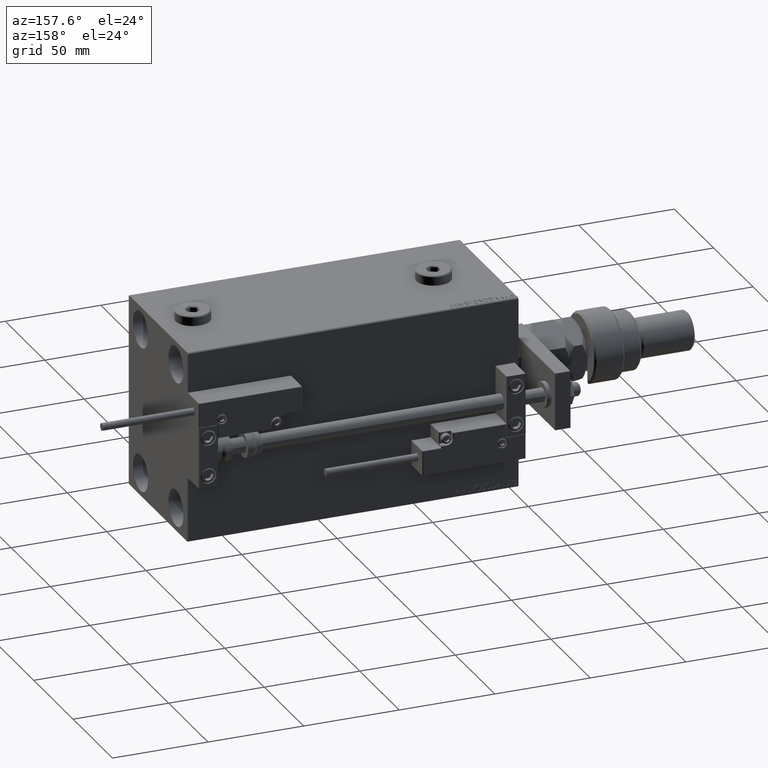
[diagram: clean part render]
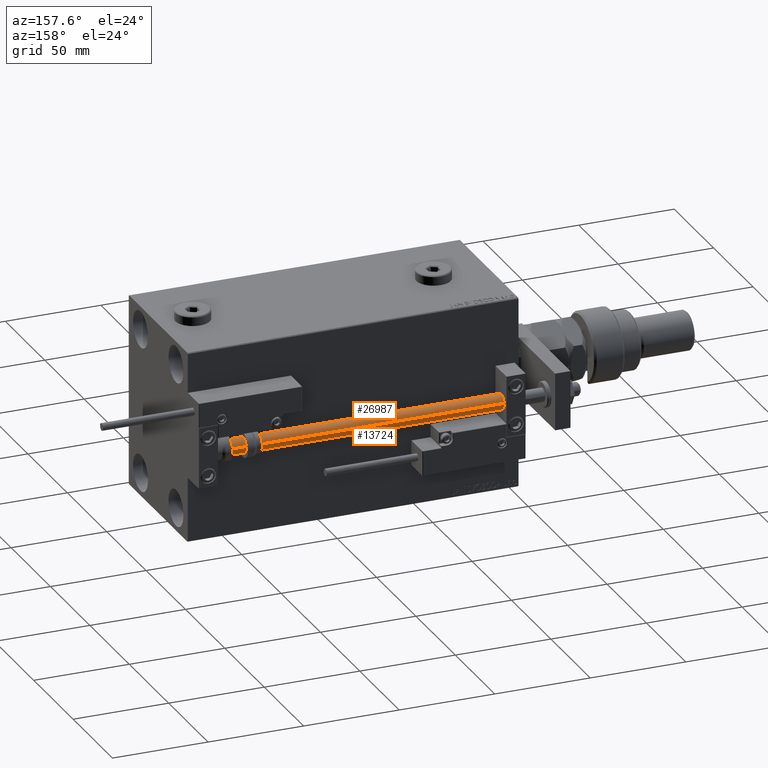
[diagram: same view with one multi-face feature highlighted, each face labeled with its STEP entity id]
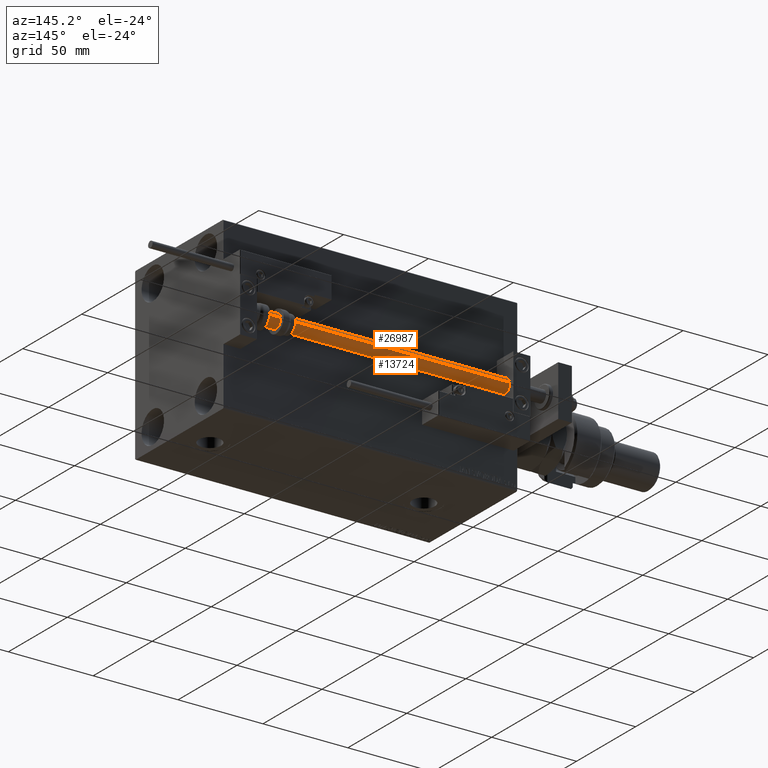
[diagram: same view with one multi-face feature highlighted, each face labeled with its STEP entity id]
A machine part, auxiliary view. The highlighted faces form ONE feature: a constant-radius fillet chain: 2 tangent blend faces with common blend radius 4 mm. The faces share edges in the B-rep.
A second angle (auxiliary view) of the same feature is appended — it is thin or edge-on in the first view.
Their STEP definitions:
[1] entity #13724 (Cylinder):
#431 = DIRECTION ( 'NONE',  ( 1.000000000000000000, 0.000000000000000000, 0.000000000000000000 ) ) ;
#757 = VERTEX_POINT ( 'NONE', #36895 ) ;
#2527 = DIRECTION ( 'NONE',  ( 1.000000000000000000, 0.000000000000000000, 0.000000000000000000 ) ) ;
#3656 = CARTESIAN_POINT ( 'NONE',  ( 4.000000000000000000, 4.898587196589412829E-16, 173.0000000000000000 ) ) ;
#5716 = EDGE_CURVE ( 'NONE', #757, #15798, #11648, .T. ) ;
#7121 = VECTOR ( 'NONE', #21528, 1000.000000000000000 ) ;
#8118 = CIRCLE ( 'NONE', #38899, 4.000000000000000000 ) ;
#8721 = CARTESIAN_POINT ( 'NONE',  ( 4.000000000000000000, 4.898587196589412829E-16, 173.0000000000000000 ) ) ;
#10253 = CARTESIAN_POINT ( 'NONE',  ( 0.000000000000000000, 0.000000000000000000, 2.000000000000029310 ) ) ;
#11648 = CIRCLE ( 'NONE', #42452, 4.000000000000000000 ) ;
#13724 = ADVANCED_FACE ( 'NONE', ( #38134 ), #50821, .T. ) ;
#14124 = EDGE_LOOP ( 'NONE', ( #30824, #27035, #16795, #32217 ) ) ;
#15798 = VERTEX_POINT ( 'NONE', #3656 ) ;
#16012 = CARTESIAN_POINT ( 'NONE',  ( -4.000000000000000000, 0.000000000000000000, 2.000000000000029310 ) ) ;
#16323 = CARTESIAN_POINT ( 'NONE',  ( -4.000000000000000000, 0.000000000000000000, 173.0000000000000000 ) ) ;
#16795 = ORIENTED_EDGE ( 'NONE', *, *, #48481, .T. ) ;
#20040 = LINE ( 'NONE', #8721, #54479 ) ;
#20785 = AXIS2_PLACEMENT_3D ( 'NONE', #21331, #25737, #46138 ) ;
#21331 = CARTESIAN_POINT ( 'NONE',  ( 0.000000000000000000, 0.000000000000000000, 173.0000000000000000 ) ) ;
#21528 = DIRECTION ( 'NONE',  ( -0.000000000000000000, -0.000000000000000000, -1.000000000000000000 ) ) ;
#22729 = CARTESIAN_POINT ( 'NONE',  ( 4.000000000000000000, 4.898587196589412829E-16, 2.000000000000029310 ) ) ;
#25130 = LINE ( 'NONE', #16323, #7121 ) ;
#25503 = CARTESIAN_POINT ( 'NONE',  ( 0.000000000000000000, 0.000000000000000000, 173.0000000000000000 ) ) ;
#25527 = DIRECTION ( 'NONE',  ( -0.000000000000000000, -0.000000000000000000, -1.000000000000000000 ) ) ;
#25737 = DIRECTION ( 'NONE',  ( -0.000000000000000000, -0.000000000000000000, -1.000000000000000000 ) ) ;
#27035 = ORIENTED_EDGE ( 'NONE', *, *, #5716, .F. ) ;
#29721 = EDGE_CURVE ( 'NONE', #15798, #30739, #20040, .T. ) ;
#30739 = VERTEX_POINT ( 'NONE', #22729 ) ;
#30824 = ORIENTED_EDGE ( 'NONE', *, *, #29721, .F. ) ;
#32217 = ORIENTED_EDGE ( 'NONE', *, *, #40464, .T. ) ;
#34583 = VERTEX_POINT ( 'NONE', #16012 ) ;
#36895 = CARTESIAN_POINT ( 'NONE',  ( -4.000000000000000000, 0.000000000000000000, 173.0000000000000000 ) ) ;
#38134 = FACE_OUTER_BOUND ( 'NONE', #14124, .T. ) ;
#38899 = AXIS2_PLACEMENT_3D ( 'NONE', #10253, #48524, #2527 ) ;
#40464 = EDGE_CURVE ( 'NONE', #34583, #30739, #8118, .T. ) ;
#42299 = DIRECTION ( 'NONE',  ( 0.000000000000000000, 0.000000000000000000, 1.000000000000000000 ) ) ;
#42452 = AXIS2_PLACEMENT_3D ( 'NONE', #25503, #42299, #431 ) ;
#46138 = DIRECTION ( 'NONE',  ( -1.000000000000000000, 0.000000000000000000, 0.000000000000000000 ) ) ;
#48481 = EDGE_CURVE ( 'NONE', #757, #34583, #25130, .T. ) ;
#48524 = DIRECTION ( 'NONE',  ( -0.000000000000000000, -0.000000000000000000, 1.000000000000000000 ) ) ;
#50821 = CYLINDRICAL_SURFACE ( 'NONE', #20785, 4.000000000000000000 ) ;
#54479 = VECTOR ( 'NONE', #25527, 1000.000000000000000 ) ;
[2] entity #26987 (Cylinder):
#275 = DIRECTION ( 'NONE',  ( -1.000000000000000000, 0.000000000000000000, 0.000000000000000000 ) ) ;
#757 = VERTEX_POINT ( 'NONE', #36895 ) ;
#1292 = FACE_OUTER_BOUND ( 'NONE', #23746, .T. ) ;
#3656 = CARTESIAN_POINT ( 'NONE',  ( 4.000000000000000000, 4.898587196589412829E-16, 173.0000000000000000 ) ) ;
#3821 = DIRECTION ( 'NONE',  ( -0.000000000000000000, -0.000000000000000000, 1.000000000000000000 ) ) ;
#7121 = VECTOR ( 'NONE', #21528, 1000.000000000000000 ) ;
#7408 = ORIENTED_EDGE ( 'NONE', *, *, #42328, .T. ) ;
#8721 = CARTESIAN_POINT ( 'NONE',  ( 4.000000000000000000, 4.898587196589412829E-16, 173.0000000000000000 ) ) ;
#9840 = CYLINDRICAL_SURFACE ( 'NONE', #22680, 4.000000000000000000 ) ;
#15798 = VERTEX_POINT ( 'NONE', #3656 ) ;
#16012 = CARTESIAN_POINT ( 'NONE',  ( -4.000000000000000000, 0.000000000000000000, 2.000000000000029310 ) ) ;
#16323 = CARTESIAN_POINT ( 'NONE',  ( -4.000000000000000000, 0.000000000000000000, 173.0000000000000000 ) ) ;
#17867 = CIRCLE ( 'NONE', #25771, 4.000000000000000000 ) ;
#20040 = LINE ( 'NONE', #8721, #54479 ) ;
#21528 = DIRECTION ( 'NONE',  ( -0.000000000000000000, -0.000000000000000000, -1.000000000000000000 ) ) ;
#21976 = DIRECTION ( 'NONE',  ( 0.000000000000000000, 0.000000000000000000, 1.000000000000000000 ) ) ;
#22680 = AXIS2_PLACEMENT_3D ( 'NONE', #29505, #38015, #275 ) ;
#22729 = CARTESIAN_POINT ( 'NONE',  ( 4.000000000000000000, 4.898587196589412829E-16, 2.000000000000029310 ) ) ;
#22785 = CARTESIAN_POINT ( 'NONE',  ( 0.000000000000000000, 0.000000000000000000, 173.0000000000000000 ) ) ;
#23746 = EDGE_LOOP ( 'NONE', ( #53829, #47682, #7408, #32749 ) ) ;
#25130 = LINE ( 'NONE', #16323, #7121 ) ;
#25527 = DIRECTION ( 'NONE',  ( -0.000000000000000000, -0.000000000000000000, -1.000000000000000000 ) ) ;
#25771 = AXIS2_PLACEMENT_3D ( 'NONE', #50085, #3821, #41273 ) ;
#26987 = ADVANCED_FACE ( 'NONE', ( #1292 ), #9840, .T. ) ;
#29505 = CARTESIAN_POINT ( 'NONE',  ( 0.000000000000000000, 0.000000000000000000, 173.0000000000000000 ) ) ;
#29721 = EDGE_CURVE ( 'NONE', #15798, #30739, #20040, .T. ) ;
#30739 = VERTEX_POINT ( 'NONE', #22729 ) ;
#31993 = CIRCLE ( 'NONE', #37258, 4.000000000000000000 ) ;
#32749 = ORIENTED_EDGE ( 'NONE', *, *, #48481, .F. ) ;
#34583 = VERTEX_POINT ( 'NONE', #16012 ) ;
#36895 = CARTESIAN_POINT ( 'NONE',  ( -4.000000000000000000, 0.000000000000000000, 173.0000000000000000 ) ) ;
#37258 = AXIS2_PLACEMENT_3D ( 'NONE', #22785, #21976, #38768 ) ;
#38015 = DIRECTION ( 'NONE',  ( -0.000000000000000000, -0.000000000000000000, -1.000000000000000000 ) ) ;
#38768 = DIRECTION ( 'NONE',  ( 1.000000000000000000, 0.000000000000000000, 0.000000000000000000 ) ) ;
#41273 = DIRECTION ( 'NONE',  ( 1.000000000000000000, 0.000000000000000000, 0.000000000000000000 ) ) ;
#42328 = EDGE_CURVE ( 'NONE', #30739, #34583, #17867, .T. ) ;
#43336 = EDGE_CURVE ( 'NONE', #15798, #757, #31993, .T. ) ;
#47682 = ORIENTED_EDGE ( 'NONE', *, *, #29721, .T. ) ;
#48481 = EDGE_CURVE ( 'NONE', #757, #34583, #25130, .T. ) ;
#50085 = CARTESIAN_POINT ( 'NONE',  ( 0.000000000000000000, 0.000000000000000000, 2.000000000000029310 ) ) ;
#53829 = ORIENTED_EDGE ( 'NONE', *, *, #43336, .F. ) ;
#54479 = VECTOR ( 'NONE', #25527, 1000.000000000000000 ) ;